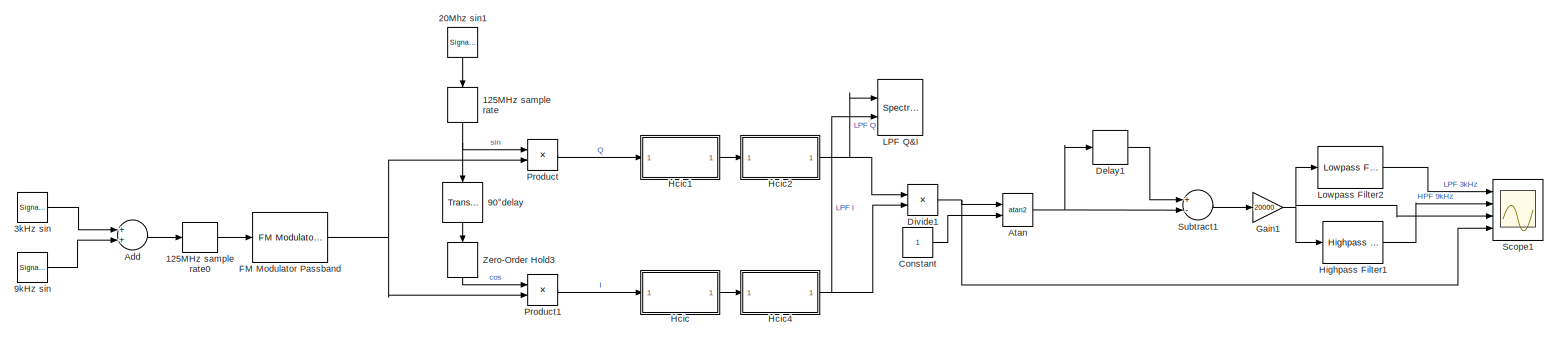
[diagram: root canvas - part 1/1, most of the canvas]
MODEL slx_a3945b5a061f
KIND model
CONFIG AbsTol = auto
CONFIG EnableMultiTasking = off
CONFIG FixedStep = auto
CONFIG MaxStep = auto
CONFIG MinStep = auto
CONFIG RelTol = 1e-3
CONFIG SampleTimeConstraint = Unconstrained
CONFIG Solver = VariableStepAuto
CONFIG SolverName = VariableStepAuto
CONFIG StartTime = 0.0
CONFIG StopTime = 0.1
BLOCK [ZeroOrderHold] 125MHz sample rate
  SampleTime = 8e-9
BLOCK [ZeroOrderHold] 125MHz sample rate0
  SampleTime = 8e-9
BLOCK [SignalGenerator] 20Mhz sin1
  Frequency = 20e6
  Ports = [0, 1]
BLOCK [SignalGenerator] 3kHz sin
  Frequency = 3000
  Ports = [0, 1]
BLOCK [TransportDelay] 90°delay
  DelayTime = 12.5e-9
  Ports = [1, 1]
BLOCK [SignalGenerator] 9kHz sin 
  Frequency = 9000
  Ports = [0, 1]
BLOCK [Sum] Add
  InputSameDT = off
  OutDataTypeStr = Inherit: Inherit via internal rule
  Ports = [2, 1]
  SaturateOnIntegerOverflow = off
BLOCK [Trigonometry] Atan
  ApproximationMethod = CORDIC
  NumberOfIterations = 15
  Operator = atan2
  Ports = [2, 1]
BLOCK [Constant] Constant
  OutDataTypeStr = fixdt(1,32,15)
  SampleTime = 5e-6
BLOCK [Delay] Delay1
  DelayLength = 1
  InitialCondition = 0
  InputPortMap = u0
  Ports = [1, 1]
BLOCK [Product] Divide1
  InputSameDT = off
  Inputs = */
  OutDataTypeStr = fixdt(1,32,15)
  OutMax = 0.06
  OutMin = 0
  Ports = [2, 1]
  RndMeth = Floor
  SaturateOnIntegerOverflow = off
BLOCK [Reference] FM Modulator Passband  REF=commanapbnd3/FM
Modulator
Passband
  Ports = [1, 1]
  SourceBlock = commanapbnd3/FM\nModulator\nPassband
  SourceProductBaseCode = CM
  SourceProductName = Communications Toolbox
  SourceType = FM Modulator Passband
BLOCK [Gain] Gain1
  Gain = 20000
  OutDataTypeStr = Inherit: Inherit via internal rule
  ParamDataTypeStr = Inherit: Inherit via internal rule
  SaturateOnIntegerOverflow = off
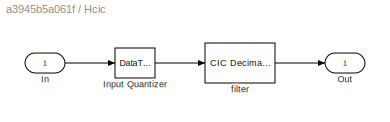
BLOCK [SubSystem] Hcic
  Ports = [1, 1]
  RequestExecContextInheritance = off
  Tag = BlockMethodSubSystem
BLOCK [Inport] Hcic/In
  IconDisplay = Port number
BLOCK [DataTypeConversion] Hcic/Input Quantizer
  OutDataTypeStr = fixdt(1,12,0)
  RndMeth = Round
BLOCK [Outport] Hcic/Out
  IconDisplay = Port number
BLOCK [Reference] Hcic/filter  REF=dspmlti4/CIC
Decimation
  Ports = [1, 1]
  SourceBlock = dspmlti4/CIC\nDecimation
  SourceProductBaseCode = DS
  SourceProductName = DSP System Toolbox
  SourceType = CIC Decimation
  UserDataPersistent = on
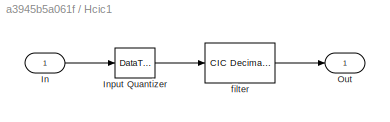
BLOCK [SubSystem] Hcic1
  Ports = [1, 1]
  RequestExecContextInheritance = off
  Tag = BlockMethodSubSystem
BLOCK [Inport] Hcic1/In
  IconDisplay = Port number
BLOCK [DataTypeConversion] Hcic1/Input Quantizer
  OutDataTypeStr = fixdt(1,12,0)
  RndMeth = Round
BLOCK [Outport] Hcic1/Out
  IconDisplay = Port number
BLOCK [Reference] Hcic1/filter  REF=dspmlti4/CIC
Decimation
  Ports = [1, 1]
  SourceBlock = dspmlti4/CIC\nDecimation
  SourceProductBaseCode = DS
  SourceProductName = DSP System Toolbox
  SourceType = CIC Decimation
  UserDataPersistent = on
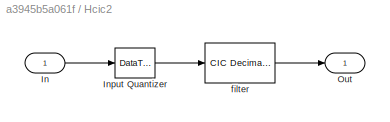
BLOCK [SubSystem] Hcic2
  Ports = [1, 1]
  RequestExecContextInheritance = off
  Tag = BlockMethodSubSystem
BLOCK [Inport] Hcic2/In
  IconDisplay = Port number
BLOCK [DataTypeConversion] Hcic2/Input Quantizer
  OutDataTypeStr = fixdt(1,12,0)
  RndMeth = Round
BLOCK [Outport] Hcic2/Out
  IconDisplay = Port number
BLOCK [Reference] Hcic2/filter  REF=dspmlti4/CIC
Decimation
  Ports = [1, 1]
  SourceBlock = dspmlti4/CIC\nDecimation
  SourceProductBaseCode = DS
  SourceProductName = DSP System Toolbox
  SourceType = CIC Decimation
  UserDataPersistent = on
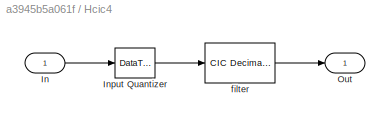
BLOCK [SubSystem] Hcic4
  Ports = [1, 1]
  RequestExecContextInheritance = off
  Tag = BlockMethodSubSystem
BLOCK [Inport] Hcic4/In
  IconDisplay = Port number
BLOCK [DataTypeConversion] Hcic4/Input Quantizer
  OutDataTypeStr = fixdt(1,12,0)
  RndMeth = Round
BLOCK [Outport] Hcic4/Out
  IconDisplay = Port number
BLOCK [Reference] Hcic4/filter  REF=dspmlti4/CIC
Decimation
  Ports = [1, 1]
  SourceBlock = dspmlti4/CIC\nDecimation
  SourceProductBaseCode = DS
  SourceProductName = DSP System Toolbox
  SourceType = CIC Decimation
  UserDataPersistent = on
BLOCK [Reference] Highpass Filter1  REF=dspfdesign/Highpass Filter
  Ports = [1, 1]
  SourceBlock = dspfdesign/Highpass Filter
  SourceProductBaseCode = DS
  SourceProductName = DSP System Toolbox
  SourceType = dsp.HighpassFilter
BLOCK [SpectrumAnalyzer] LPF Q&I
  NumInputPorts = 2
  Ports = [2]
  ScopeSpecificationString = spbscopes.SpectrumAnalyzerBlockCfg('CurrentConfiguration', extmgr.ConfigurationSet(extmgr.Configuration('Core','General UI',true),extmgr.Configuration('Core','Source UI',true),extmgr.Configuration('Sources','WiredSimulink',true),extmgr.Configuration('Sources','SimulinkEvent',false),extmgr.Configuration('Sources','Simulink',false),extmgr.Configuration('Sources','SPTool',false),extmgr.Configuration(...<+3964ch>
BLOCK [Reference] Lowpass Filter2  REF=dspfdesign/Lowpass Filter
  Ports = [1, 1]
  SourceBlock = dspfdesign/Lowpass Filter
  SourceProductBaseCode = DS
  SourceProductName = DSP System Toolbox
  SourceType = dsp.LowpassFilter
BLOCK [Product] Product
  InputSameDT = off
  OutDataTypeStr = Inherit: Inherit via internal rule
  Ports = [2, 1]
  RndMeth = Floor
  SaturateOnIntegerOverflow = off
BLOCK [Product] Product1
  InputSameDT = off
  OutDataTypeStr = Inherit: Inherit via internal rule
  Ports = [2, 1]
  RndMeth = Floor
  SaturateOnIntegerOverflow = off
BLOCK [Scope] Scope1
  Floating = off
  NumInputPorts = 4
  Ports = [4]
  ScopeSpecificationString = Simulink.scopes.TimeScopeBlockCfg('CurrentConfiguration', extmgr.ConfigurationSet(extmgr.Configuration('Core','General UI',true),extmgr.Configuration('Core','Source UI',true),extmgr.Configuration('Sources','WiredSimulink',true,'DataLoggingVariableName','ScopeData1'),extmgr.Configuration('Visuals','Time Domain',true,'SerializedDisplays',{struct('MinYLimReal','-234.44158','MaxYLimReal','200.58166','...<+3642ch>
BLOCK [Sum] Subtract1
  InputSameDT = off
  Inputs = +-
  OutDataTypeStr = Inherit: Inherit via internal rule
  Ports = [2, 1]
  SaturateOnIntegerOverflow = off
BLOCK [ZeroOrderHold] Zero-Order Hold3
  SampleTime = 8e-9
LINE 125MHz sample rate0:1 -> FM Modulator Passband:1
NET 125MHz sample rate:1 -> 90°delay:1, Product:1
LINE 20Mhz sin1:1 -> 125MHz sample rate:1
LINE 3kHz sin:1 -> Add:1
LINE 90°delay:1 -> Zero-Order Hold3:1
LINE 9kHz sin :1 -> Add:2
LINE Add:1 -> 125MHz sample rate0:1
NET Atan:1 -> Delay1:1, Subtract1:2
LINE Constant:1 -> Atan:2
LINE Delay1:1 -> Subtract1:1
NET Divide1:1 -> Atan:1, Scope1:4
NET FM Modulator Passband:1 -> Product1:2, Product:2
NET Gain1:1 -> Highpass Filter1:1, Lowpass Filter2:1, Scope1:3
LINE Hcic/In:1 -> Hcic/Input Quantizer:1
LINE Hcic/Input Quantizer:1 -> Hcic/filter:1
LINE Hcic/filter:1 -> Hcic/Out:1
LINE Hcic1/In:1 -> Hcic1/Input Quantizer:1
LINE Hcic1/Input Quantizer:1 -> Hcic1/filter:1
LINE Hcic1/filter:1 -> Hcic1/Out:1
LINE Hcic1:1 -> Hcic2:1
LINE Hcic2/In:1 -> Hcic2/Input Quantizer:1
LINE Hcic2/Input Quantizer:1 -> Hcic2/filter:1
LINE Hcic2/filter:1 -> Hcic2/Out:1
NET Hcic2:1 -> Divide1:1, LPF Q&I:1
LINE Hcic4/In:1 -> Hcic4/Input Quantizer:1
LINE Hcic4/Input Quantizer:1 -> Hcic4/filter:1
LINE Hcic4/filter:1 -> Hcic4/Out:1
NET Hcic4:1 -> Divide1:2, LPF Q&I:2
LINE Hcic:1 -> Hcic4:1
LINE Highpass Filter1:1 -> Scope1:2
LINE Lowpass Filter2:1 -> Scope1:1
LINE Product1:1 -> Hcic:1
LINE Product:1 -> Hcic1:1
LINE Subtract1:1 -> Gain1:1
LINE Zero-Order Hold3:1 -> Product1:1
note: NET lines group one-source signal fan-out (src -> all destinations, sorted); 1:1 wires keep LINE
